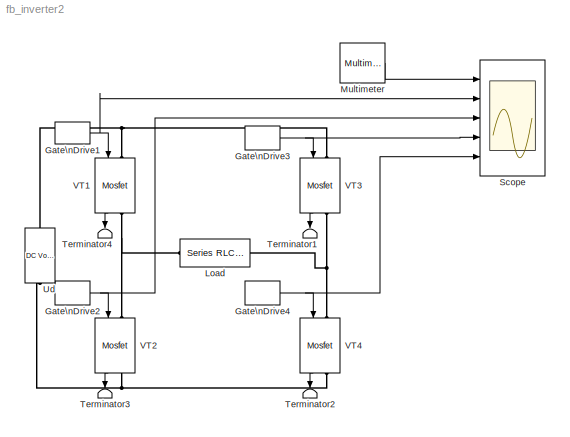
MODEL fb_inverter2
KIND model
BLOCK [DiscretePulseGenerator] Gate\nDrive1
  Period = 0.02
  Ports = [0, 1]
  PulseType = Time based
  PulseWidth = 49.5
BLOCK [DiscretePulseGenerator] Gate\nDrive2
  Period = 0.02
  PhaseDelay = 0.01
  Ports = [0, 1]
  PulseType = Time based
  PulseWidth = 49.5
BLOCK [DiscretePulseGenerator] Gate\nDrive3
  Period = 0.02
  PhaseDelay = 0.012
  Ports = [0, 1]
  PulseType = Time based
  PulseWidth = 49.5
BLOCK [DiscretePulseGenerator] Gate\nDrive4
  Period = 0.02
  PhaseDelay = 0.002
  Ports = [0, 1]
  PulseType = Time based
  PulseWidth = 49.5
BLOCK [Reference] Load  REF=powerlib/Elements/Series RLC Branch
  Capacitance = inf
  Inductance = 0.01
  LConnTagsString = __new0
  LeftPortType = p1
  Measurements = Branch voltage and current
  PhysicalDomain = powersysdomain
  Ports = [0, 0, 0, 0, 0, 1, 1]
  RConnTagsString = __new0
  Resistance = 1
  RightPortType = p1
  SourceBlock = powerlib/Elements/Series RLC Branch
  SourceType = Series RLC Branch
  SubClassName = unknown
BLOCK [Reference] Multimeter  REF=powerlib/Measurements/Multimeter
  AxesSetting = [0,0.1,-100,100]
  Display = 0
  Gain = [1 1]
  L = 2
  OutputType = Complex
  PSBOutputType = 1
  PSBequivalent = 0
  PhasorSimulation = off
  Ports = [0, 1]
  SavedBlockNames = -11
  ShowPortLabels = on
  SourceBlock = powerlib/Measurements/Multimeter
  SourceType = MultimeterPSB
  sel = [1 2]
  yselected = {'Ub: Load','Ib: Load'};
BLOCK [Scope] Scope
  DataFormat = StructureWithTime
  LimitDataPoints = off
  NumInputPorts = 5
  Ports = [5]
  SampleTime = 2e-4
  TimeRange = 0.05
  YMax = 200~2~2~2~2
  YMin = -200~-1~-1~-1~-1
  ZoomMode = xonly
BLOCK [Terminator] Terminator1
BLOCK [Terminator] Terminator2
BLOCK [Terminator] Terminator3
BLOCK [Terminator] Terminator4
BLOCK [Reference] Ud  REF=powerlib/Electrical\nSources/DC Voltage Source
  Amplitude = 100
  Measurements = None
  Ports = [0, 0, 0, 0, 0, 1, 1]
  ShowPortLabels = on
  SourceBlock = powerlib/Electrical\nSources/DC Voltage Source
  SourceType = DC Voltage Source
BLOCK [Reference] VT1  REF=powerlib/Power\nElectronics/Mosfet
  Cs = 1e-6
  IC = 0
  Lon = 1e-7
  Measurements = on
  Ports = [1, 1, 0, 0, 0, 1, 1]
  Rd = .01
  Ron = 0.01
  Rs = 5
  ShowPortLabels = on
  SourceBlock = powerlib/Power\nElectronics/Mosfet
  SourceType = Mosfet
BLOCK [Reference] VT2  REF=powerlib/Power\nElectronics/Mosfet
  Cs = 1e-6
  IC = 0
  Lon = 1e-7
  Measurements = on
  Ports = [1, 1, 0, 0, 0, 1, 1]
  Rd = .01
  Ron = 0.01
  Rs = 5
  ShowPortLabels = on
  SourceBlock = powerlib/Power\nElectronics/Mosfet
  SourceType = Mosfet
BLOCK [Reference] VT3  REF=powerlib/Power\nElectronics/Mosfet
  Cs = 1e-6
  IC = 0
  Lon = 1e-7
  Measurements = on
  Ports = [1, 1, 0, 0, 0, 1, 1]
  Rd = .01
  Ron = 0.01
  Rs = 5
  ShowPortLabels = on
  SourceBlock = powerlib/Power\nElectronics/Mosfet
  SourceType = Mosfet
BLOCK [Reference] VT4  REF=powerlib/Power\nElectronics/Mosfet
  Cs = 1e-6
  IC = 0
  Lon = 1e-7
  Measurements = on
  Ports = [1, 1, 0, 0, 0, 1, 1]
  Rd = .01
  Ron = 0.01
  Rs = 5
  ShowPortLabels = on
  SourceBlock = powerlib/Power\nElectronics/Mosfet
  SourceType = Mosfet
NET Gate\nDrive1:1 -> Scope:2, VT1:1
NET Gate\nDrive2:1 -> Scope:3, VT2:1
NET Gate\nDrive3:1 -> Scope:4, VT3:1
NET Gate\nDrive4:1 -> Scope:5, VT4:1
LINE Multimeter:1 -> Scope:1
LINE VT1:1 -> Terminator4:1
LINE VT2:1 -> Terminator3:1
LINE VT3:1 -> Terminator1:1
LINE VT4:1 -> Terminator2:1
PNET net1: Load:LConn1 -- VT1:RConn1 -- VT2:LConn1
PNET net2: Load:RConn1 -- VT3:RConn1 -- VT4:LConn1
PNET net3: Ud:LConn1 -- VT2:RConn1 -- VT4:RConn1
PNET net4: Ud:RConn1 -- VT1:LConn1 -- VT3:LConn1
note: NET lines group one-source signal fan-out (src -> all destinations, sorted); 1:1 wires keep LINE; PNET lines group multi-terminal physical nets as a canonical sorted terminal list (undirected conserving connections); 2-terminal nets keep the pairwise PLINE form
